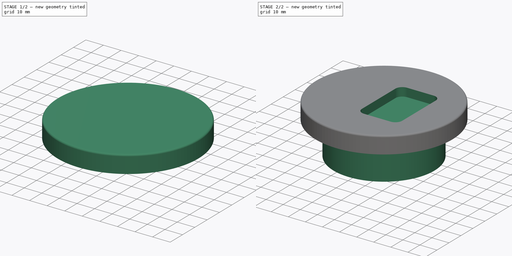
[diagram: build sequence overview — one tinted view per stage of 2, left to right]
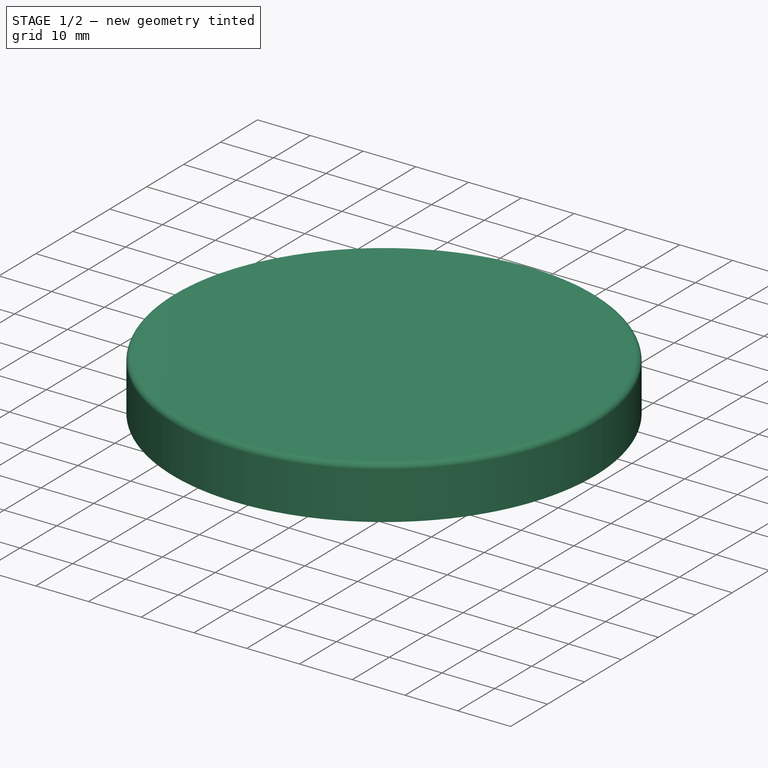
[diagram: stage 1 of 2 — iso view after this stage's code; geometry added in this stage tinted green]
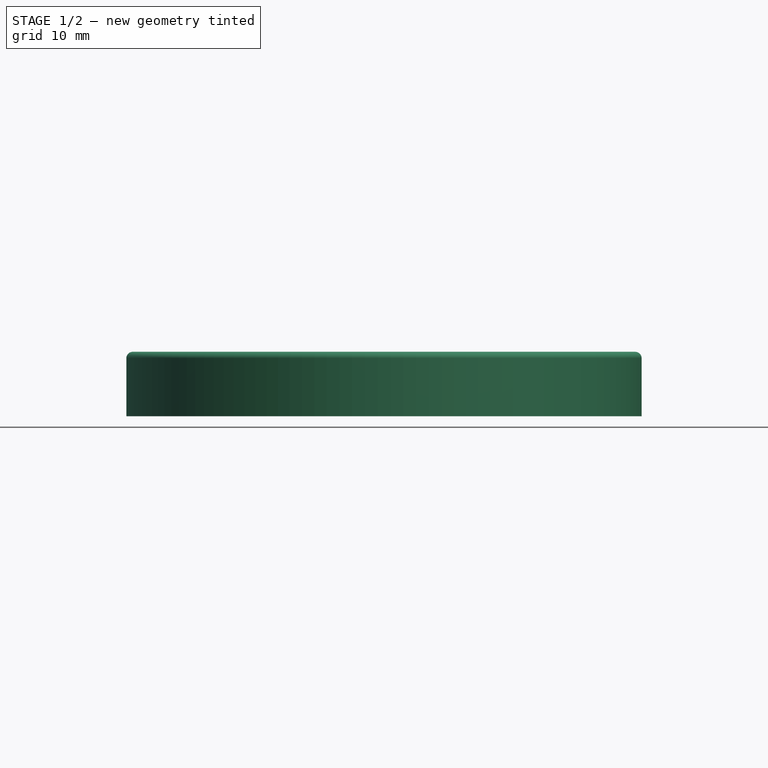
[diagram: stage 1 of 2 — front view after this stage's code; geometry added in this stage tinted green]
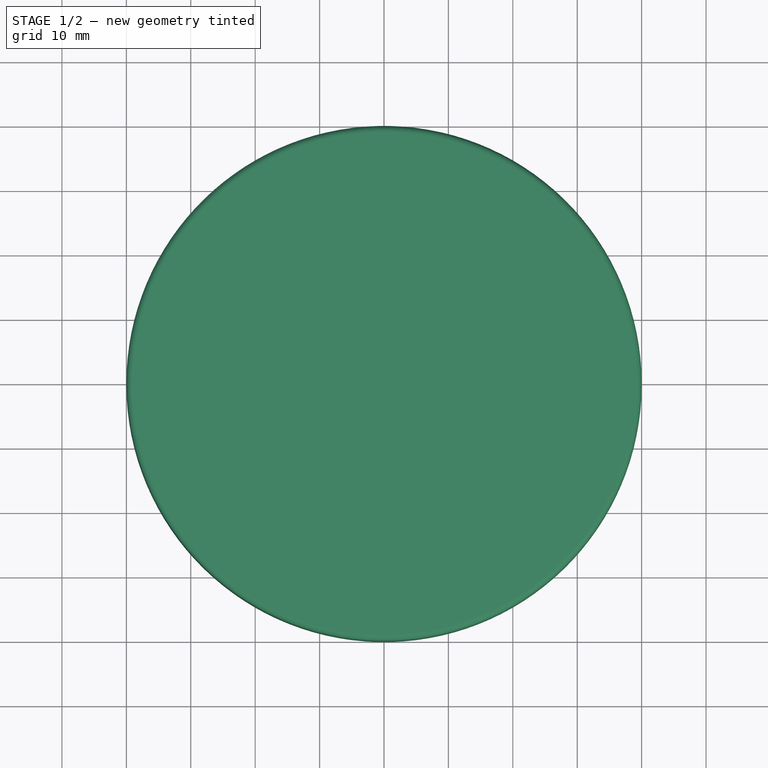
[diagram: stage 1 of 2 — top view after this stage's code; geometry added in this stage tinted green]
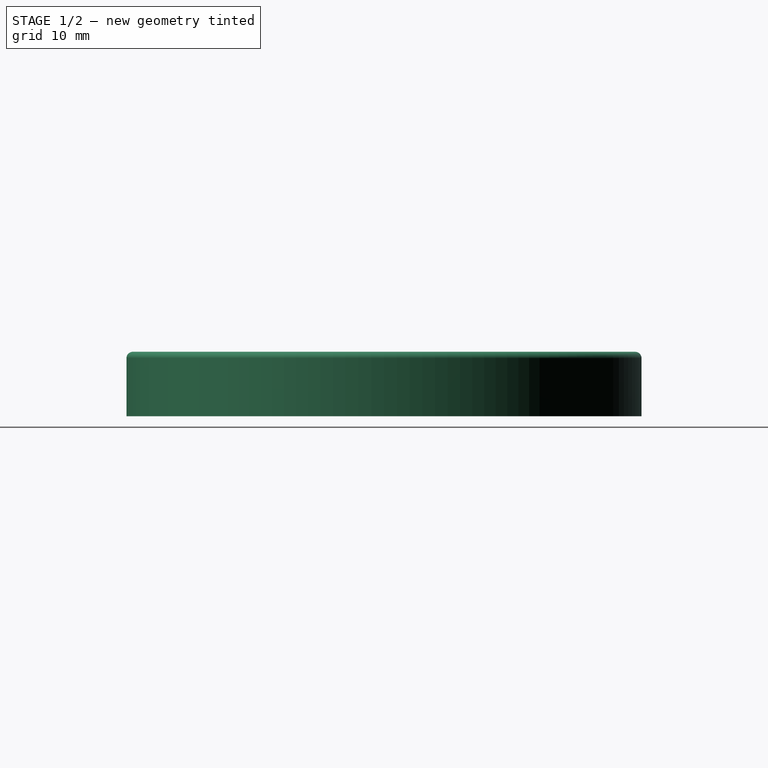
[diagram: stage 1 of 2 — right view after this stage's code; geometry added in this stage tinted green]
FCSTD DOCUMENT  (FreeCAD 0.15R4196 (Git))
Label: Deckel-Alutank
License: CC-BY 3.0
LicenseURL: http://creativecommons.org/licenses/by/3.0/
objects: Sketcher::SketchObject×3, PartDesign::Pad×2, PartDesign::Fillet×1, PartDesign::Pocket×1
note: 10 computed .brp shape members not serialized (recipe doc carries the construction recipe); baked Part::Feature solids carry a one-line shape summary decoded from their .brp

FEATURE [Sketcher::SketchObject] Sketch
  sketch-geometry (1):
    g0: Circle CenterX=0 CenterY=0 CenterZ=0 NormalX=0 NormalY=0 NormalZ=1 Radius=40
  constraints (2):
    c: Coincident(g0,g-1)
    c: Radius(g0) = 40
FEATURE [PartDesign::Pad] Pad
  Length = 10
  Length2 = 100
  Sketch = -> Sketch
  Type = 0
FEATURE [PartDesign::Fillet] Fillet
  Base = -> Pad [Edge3]
  Radius = 1
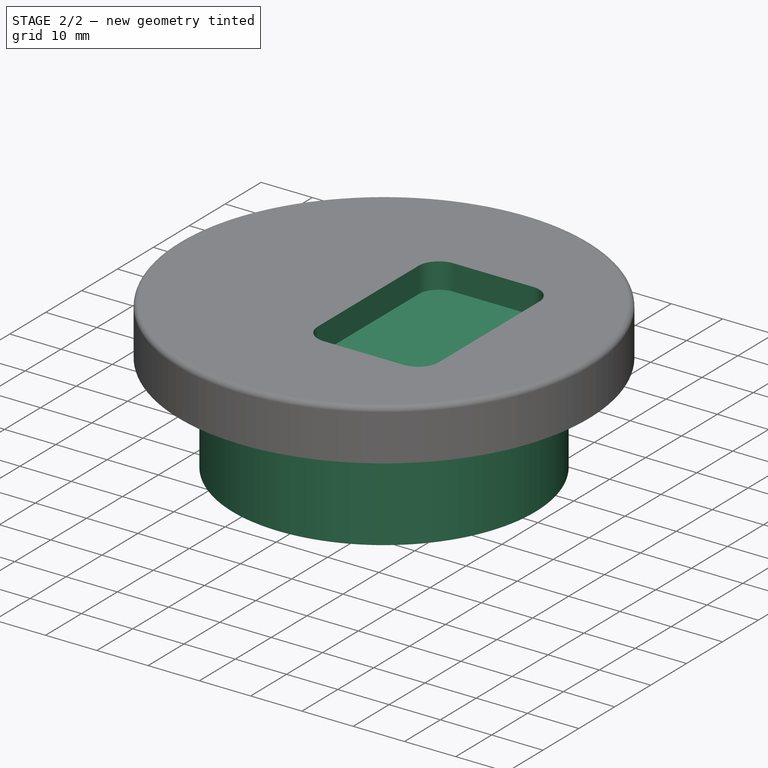
[diagram: stage 2 of 2 — iso view after this stage's code; geometry added in this stage tinted green]
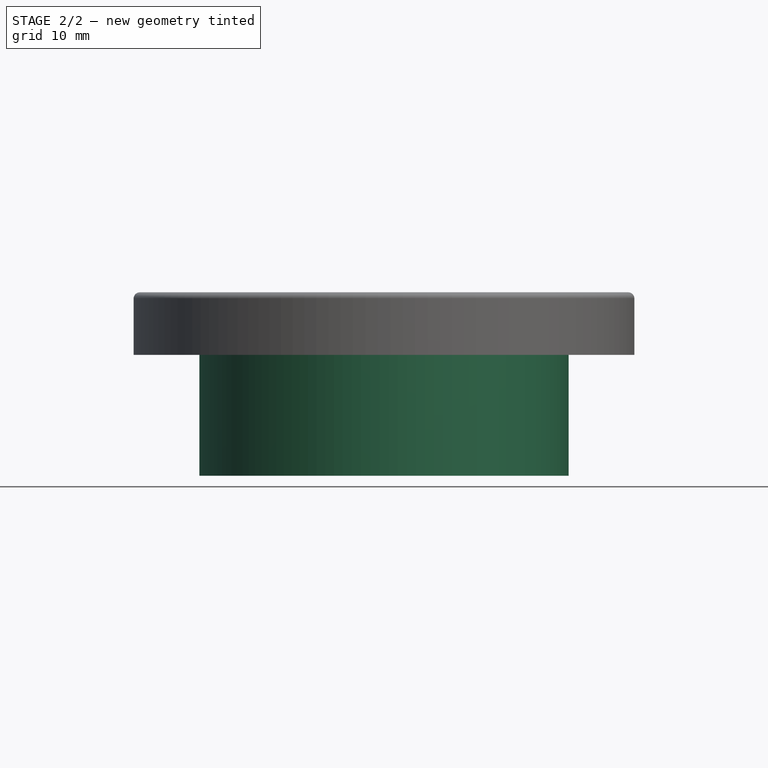
[diagram: stage 2 of 2 — front view after this stage's code; geometry added in this stage tinted green]
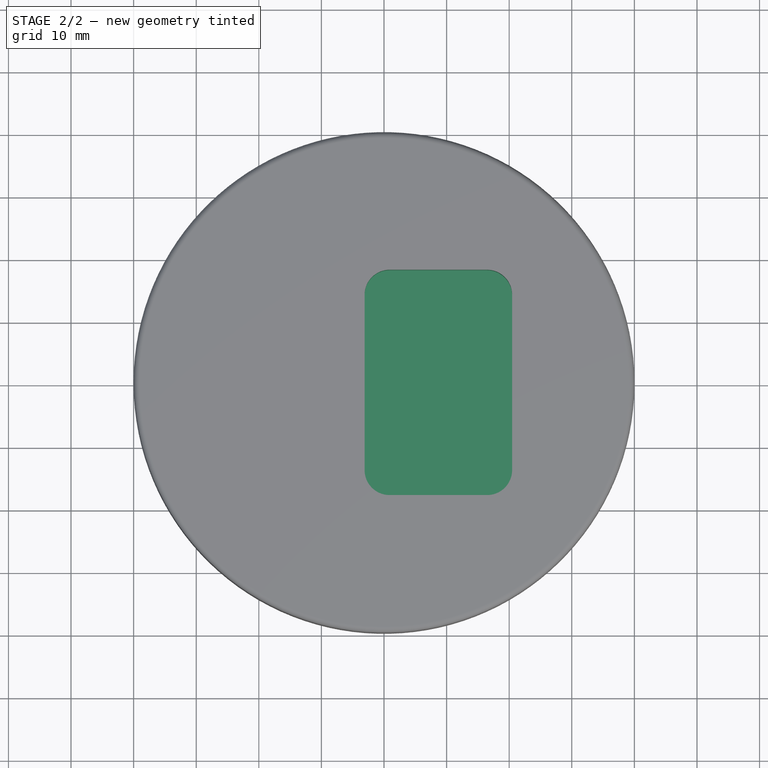
[diagram: stage 2 of 2 — top view after this stage's code; geometry added in this stage tinted green]
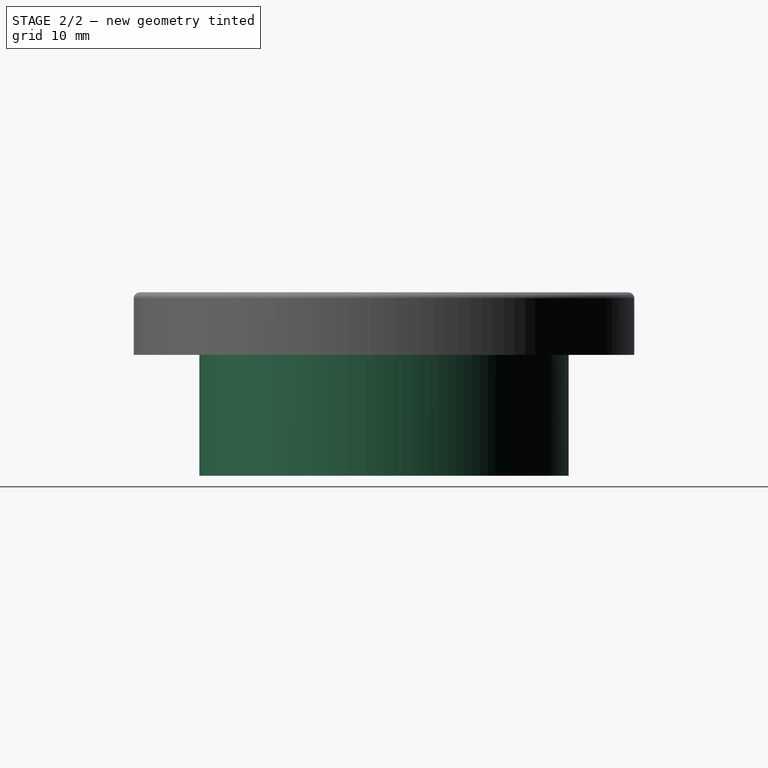
[diagram: stage 2 of 2 — right view after this stage's code; geometry added in this stage tinted green]
FEATURE [Sketcher::SketchObject] Sketch001
  Placement = pos=(0,0,0) rot=(1,0,0;3.14159rad)
  Support = -> Fillet [Face3]
  sketch-geometry (1):
    g0: Circle CenterX=0 CenterY=0 CenterZ=0 NormalX=0 NormalY=0 NormalZ=1 Radius=29.5
  constraints (2):
    c: Coincident(g0,g-1)
    c: Radius(g0) = 29.5
FEATURE [PartDesign::Pad] Pad001
  Length = 19.3
  Length2 = 100
  Sketch = -> Sketch001
  Type = 0
FEATURE [Sketcher::SketchObject] Sketch002
  Placement = pos=(0,0,10) rot=(0,0,1;0rad)
  Support = -> Pad001 [Face6]
  sketch-geometry (20):
    g0: LineSegment StartX=0.9 StartY=18 StartZ=0 EndX=16.4689 EndY=18 EndZ=0
    g1: LineSegment StartX=20.4689 StartY=14 StartZ=0 EndX=20.4689 EndY=-14 EndZ=0
    g2: LineSegment StartX=16.4689 StartY=-18 StartZ=0 EndX=0.9 EndY=-18 EndZ=0
    g3: LineSegment StartX=-3.1 StartY=-14 StartZ=0 EndX=-3.1 EndY=14 EndZ=0
    g4: Circle [constr] CenterX=0 CenterY=0 CenterZ=0 NormalX=0 NormalY=0 NormalZ=1 Radius=27.6
    g5: Circle [constr] CenterX=-17.6 CenterY=0 CenterZ=0 NormalX=0 NormalY=0 NormalZ=1 Radius=13.5
    g6: GeomPoint [constr] X=-31.1 Y=0 Z=0
    g7: GeomPoint [constr] X=-27.6 Y=0 Z=0
    g8: GeomPoint [constr] X=-4.1 Y=0 Z=0
    g9: GeomPoint [constr] X=-3.1 Y=0 Z=0
    g10: ArcOfCircle CenterX=0.9 CenterY=14 CenterZ=0 NormalX=0 NormalY=0 NormalZ=1 Radius=4 StartAngle=1.5708 EndAngle=3.14159
    g11: ArcOfCircle CenterX=16.4689 CenterY=14 CenterZ=0 NormalX=0 NormalY=0 NormalZ=1 Radius=4 StartAngle=0 EndAngle=1.5708
    g12: ArcOfCircle CenterX=16.4689 CenterY=-14 CenterZ=0 NormalX=0 NormalY=0 NormalZ=1 Radius=4 StartAngle=4.71239 EndAngle=6.28319
    g13: ArcOfCircle CenterX=0.9 CenterY=-14 CenterZ=0 NormalX=0 NormalY=0 NormalZ=1 Radius=4 StartAngle=3.14159 EndAngle=4.71239
    g14: LineSegment [constr] StartX=16.4689 StartY=14 StartZ=0 EndX=20.4689 EndY=14 EndZ=0
    g15: LineSegment [constr] StartX=16.4689 StartY=14 StartZ=0 EndX=37.6821 EndY=35.2132 EndZ=0
    g16: GeomPoint [constr] X=20.7115 Y=18.2426 Z=0
    g17: Circle [constr] CenterX=-17.6 CenterY=0 CenterZ=0 NormalX=0 NormalY=0 NormalZ=1 Radius=8
    g18: GeomPoint [constr] X=19.2973 Y=16.8284 Z=0
    g19: GeomPoint [constr] X=-25.6 Y=0 Z=0
  constraints (47):
    c: Horizontal(g0)
    c: Horizontal(g2)
    c: Vertical(g1)
    c: Vertical(g3)
    c: Radius(g4) = 27.6
    c: Coincident(g4,g-1)
    c: Radius(g5) = 13.5
    c: PointOnObject(g5,g-1)
    c: PointOnObject(g6,g5)
    c: PointOnObject(g7,g4)
    c: PointOnObject(g7,g-1)
    c: PointOnObject(g6,g-1)
    c: PointOnObject(g8,g5)
    c: PointOnObject(g8,g-1)
    c: PointOnObject(g9,g-1)
    c: Distance(g8,g9) = 1
    c: PointOnObject(g9,g3)
    c: Tangent(g0,g10)
    c: Tangent(g3,g10)
    c: Radius(g10) = 4
    c: Tangent(g0,g11)
    c: Tangent(g1,g11)
    c: Tangent(g1,g12)
    c: Tangent(g2,g12)
    c: Tangent(g2,g13)
    c: Tangent(g3,g13)
    c: Radius(g11) = 4
    c: Radius(g12) = 4
    c: Radius(g13) = 4
    c: Distance(g1) = 28
    c: Horizontal(g14)
    c: Coincident(g14,g11)
    c: Coincident(g14,g1)
    c: Coincident(g15,g11)
    c: Angle(g14,g15) = 0.785398
    c: PointOnObject(g16,g4)
    c: PointOnObject(g16,g15)
    c: Coincident(g17,g5)
    c: Radius(g17) = 8
    c: PointOnObject(g18,g11)
    c: PointOnObject(g18,g15)
    c: Distance(g18,g16) = 2
    c: Symmetric(g0,g2,g-1)
    c: PointOnObject(g19,g17)
    c: PointOnObject(g19,g-1)
    c: Distance(g19,g7) = 2
    c: Distance(g15) = 30
FEATURE [PartDesign::Pocket] Pocket
  Length = 5
  Sketch = -> Sketch002
  Type = 0
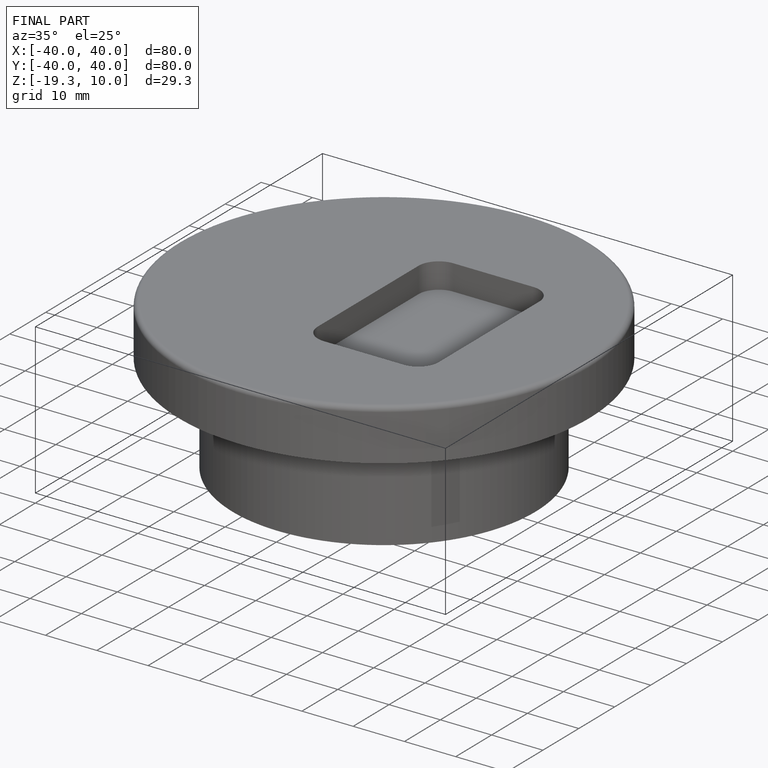
[diagram: finished part — iso view with bounding-box wireframe]
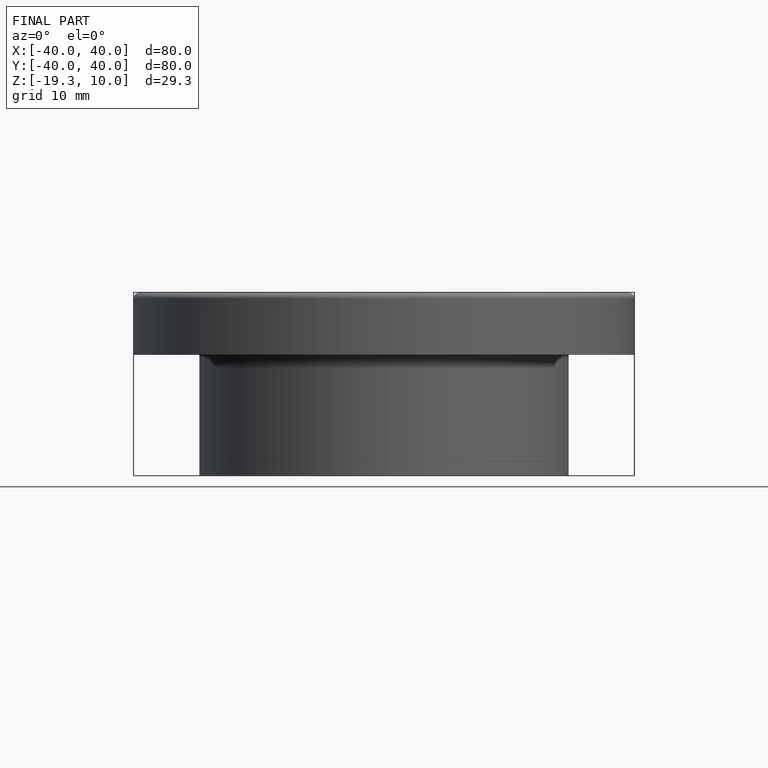
[diagram: finished part — front view with bounding-box wireframe]
